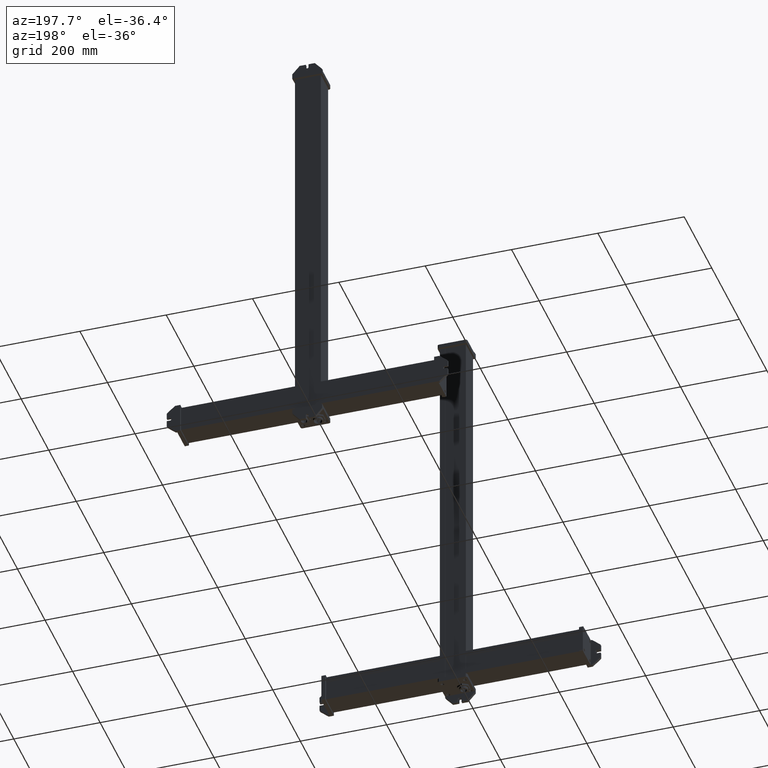
[diagram: clean part render]
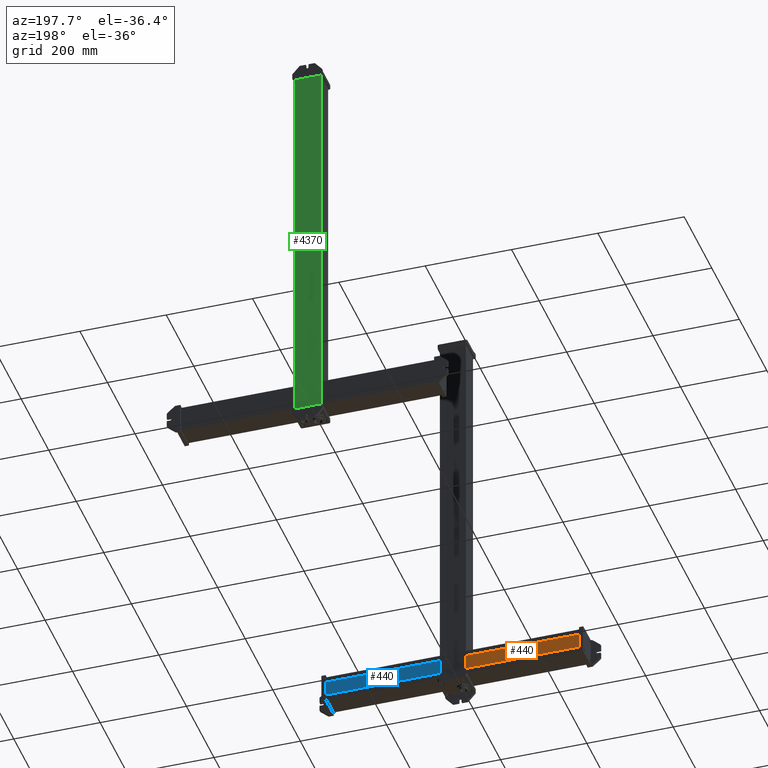
[diagram: same view with three faces highlighted in distinct colors, each labeled with its STEP entity id]
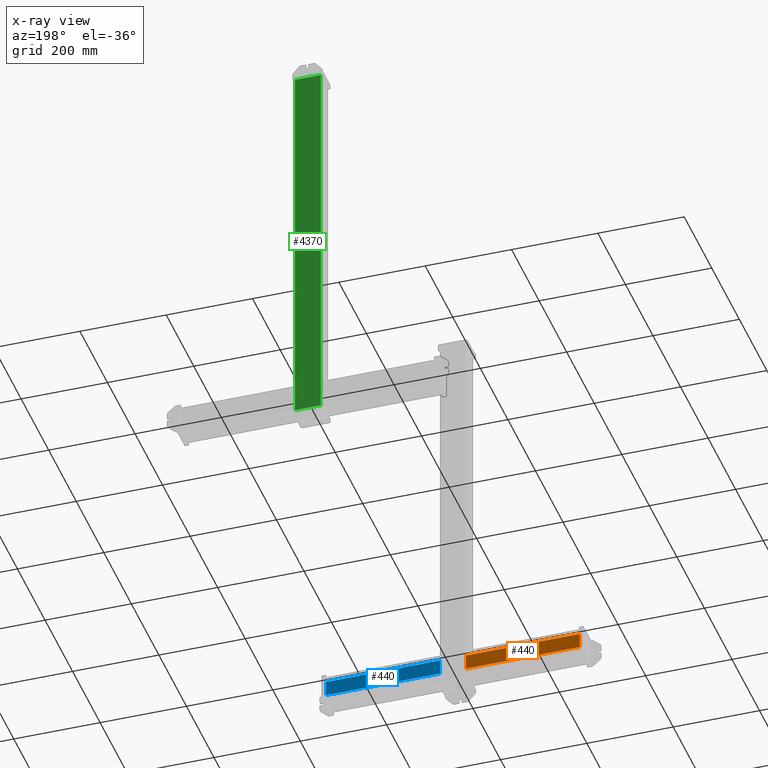
[diagram: x-ray of the same camera — body ghosted, the three highlighted faces saturated]
A machine part, auxiliary view with three faces highlighted in distinct colors.
The next image is the same camera in x-ray (body ghosted, the three faces saturated) — at least one of them is partly hidden behind the body in this view.
Their STEP definitions:

[orange] entity #440 — the highlighted planar face has unit normal (-0, 1, -0).
#357=CARTESIAN_POINT('Vertex',(12.,51.,0.)) ;
#360=CARTESIAN_POINT('Line Origine',(30.,51.,0.)) ;
#364=CARTESIAN_POINT('Vertex',(48.,51.,0.)) ;
#397=CARTESIAN_POINT('Vertex',(12.,51.,264.)) ;
#400=CARTESIAN_POINT('Line Origine',(12.,51.,132.)) ;
#417=CARTESIAN_POINT('Axis2P3D Location',(48.,51.,0.)) ;
#422=CARTESIAN_POINT('Line Origine',(48.,51.,132.)) ;
#426=CARTESIAN_POINT('Vertex',(48.,51.,264.)) ;
#429=CARTESIAN_POINT('Line Origine',(30.,51.,264.)) ;
#361=DIRECTION('Vector Direction',(-1.,0.,0.)) ;
#401=DIRECTION('Vector Direction',(0.,0.,1.)) ;
#418=DIRECTION('Axis2P3D Direction',(0.,1.,-0.)) ;
#419=DIRECTION('Axis2P3D XDirection',(-1.,0.,0.)) ;
#423=DIRECTION('Vector Direction',(0.,0.,1.)) ;
#430=DIRECTION('Vector Direction',(-1.,0.,0.)) ;
#420=AXIS2_PLACEMENT_3D('Plane Axis2P3D',#417,#418,#419) ;
#435=ORIENTED_EDGE('',*,*,#428,.F.) ;
#436=ORIENTED_EDGE('',*,*,#366,.F.) ;
#437=ORIENTED_EDGE('',*,*,#404,.T.) ;
#438=ORIENTED_EDGE('',*,*,#433,.F.) ;
#362=VECTOR('Line Direction',#361,1.) ;
#402=VECTOR('Line Direction',#401,1.) ;
#424=VECTOR('Line Direction',#423,1.) ;
#431=VECTOR('Line Direction',#430,1.) ;
#440=ADVANCED_FACE('Body.2',(#439),#421,.T.) ;
#366=EDGE_CURVE('',#358,#365,#363,.F.) ;
#404=EDGE_CURVE('',#358,#398,#403,.T.) ;
#428=EDGE_CURVE('',#365,#427,#425,.T.) ;
#433=EDGE_CURVE('',#427,#398,#432,.T.) ;
#434=EDGE_LOOP('',(#435,#436,#437,#438)) ;
#439=FACE_OUTER_BOUND('',#434,.T.) ;
#363=LINE('Line',#360,#362) ;
#403=LINE('Line',#400,#402) ;
#425=LINE('Line',#422,#424) ;
#432=LINE('Line',#429,#431) ;
#421=PLANE('Plane',#420) ;
#358=VERTEX_POINT('',#357) ;
#365=VERTEX_POINT('',#364) ;
#398=VERTEX_POINT('',#397) ;
#427=VERTEX_POINT('',#426) ;

[blue] entity #440 — the highlighted planar face has unit normal (-0, 1, -0).
#357=CARTESIAN_POINT('Vertex',(12.,51.,0.)) ;
#360=CARTESIAN_POINT('Line Origine',(30.,51.,0.)) ;
#364=CARTESIAN_POINT('Vertex',(48.,51.,0.)) ;
#397=CARTESIAN_POINT('Vertex',(12.,51.,264.)) ;
#400=CARTESIAN_POINT('Line Origine',(12.,51.,132.)) ;
#417=CARTESIAN_POINT('Axis2P3D Location',(48.,51.,0.)) ;
#422=CARTESIAN_POINT('Line Origine',(48.,51.,132.)) ;
#426=CARTESIAN_POINT('Vertex',(48.,51.,264.)) ;
#429=CARTESIAN_POINT('Line Origine',(30.,51.,264.)) ;
#361=DIRECTION('Vector Direction',(-1.,0.,0.)) ;
#401=DIRECTION('Vector Direction',(0.,0.,1.)) ;
#418=DIRECTION('Axis2P3D Direction',(0.,1.,-0.)) ;
#419=DIRECTION('Axis2P3D XDirection',(-1.,0.,0.)) ;
#423=DIRECTION('Vector Direction',(0.,0.,1.)) ;
#430=DIRECTION('Vector Direction',(-1.,0.,0.)) ;
#420=AXIS2_PLACEMENT_3D('Plane Axis2P3D',#417,#418,#419) ;
#435=ORIENTED_EDGE('',*,*,#428,.F.) ;
#436=ORIENTED_EDGE('',*,*,#366,.F.) ;
#437=ORIENTED_EDGE('',*,*,#404,.T.) ;
#438=ORIENTED_EDGE('',*,*,#433,.F.) ;
#362=VECTOR('Line Direction',#361,1.) ;
#402=VECTOR('Line Direction',#401,1.) ;
#424=VECTOR('Line Direction',#423,1.) ;
#431=VECTOR('Line Direction',#430,1.) ;
#440=ADVANCED_FACE('Body.2',(#439),#421,.T.) ;
#366=EDGE_CURVE('',#358,#365,#363,.F.) ;
#404=EDGE_CURVE('',#358,#398,#403,.T.) ;
#428=EDGE_CURVE('',#365,#427,#425,.T.) ;
#433=EDGE_CURVE('',#427,#398,#432,.T.) ;
#434=EDGE_LOOP('',(#435,#436,#437,#438)) ;
#439=FACE_OUTER_BOUND('',#434,.T.) ;
#363=LINE('Line',#360,#362) ;
#403=LINE('Line',#400,#402) ;
#425=LINE('Line',#422,#424) ;
#432=LINE('Line',#429,#431) ;
#421=PLANE('Plane',#420) ;
#358=VERTEX_POINT('',#357) ;
#365=VERTEX_POINT('',#364) ;
#398=VERTEX_POINT('',#397) ;
#427=VERTEX_POINT('',#426) ;

[green] entity #4370 — the highlighted planar face has unit normal (0, 1, 0).
#4331=CARTESIAN_POINT('Axis2P3D Location',(0.,0.,0.)) ;
#4336=CARTESIAN_POINT('Line Origine',(0.,0.,453.)) ;
#4340=CARTESIAN_POINT('Vertex',(0.,0.,0.)) ;
#4342=CARTESIAN_POINT('Vertex',(0.,0.,906.)) ;
#4345=CARTESIAN_POINT('Line Origine',(30.,0.,0.)) ;
#4349=CARTESIAN_POINT('Vertex',(60.,0.,0.)) ;
#4352=CARTESIAN_POINT('Line Origine',(60.,0.,453.)) ;
#4356=CARTESIAN_POINT('Vertex',(60.,0.,906.)) ;
#4359=CARTESIAN_POINT('Line Origine',(30.,0.,906.)) ;
#4332=DIRECTION('Axis2P3D Direction',(0.,-1.,0.)) ;
#4333=DIRECTION('Axis2P3D XDirection',(1.,0.,0.)) ;
#4337=DIRECTION('Vector Direction',(0.,0.,1.)) ;
#4346=DIRECTION('Vector Direction',(1.,0.,0.)) ;
#4353=DIRECTION('Vector Direction',(0.,0.,1.)) ;
#4360=DIRECTION('Vector Direction',(1.,0.,0.)) ;
#4334=AXIS2_PLACEMENT_3D('Plane Axis2P3D',#4331,#4332,#4333) ;
#4365=ORIENTED_EDGE('',*,*,#4344,.F.) ;
#4366=ORIENTED_EDGE('',*,*,#4351,.T.) ;
#4367=ORIENTED_EDGE('',*,*,#4358,.T.) ;
#4368=ORIENTED_EDGE('',*,*,#4363,.F.) ;
#4338=VECTOR('Line Direction',#4337,1.) ;
#4347=VECTOR('Line Direction',#4346,1.) ;
#4354=VECTOR('Line Direction',#4353,1.) ;
#4361=VECTOR('Line Direction',#4360,1.) ;
#4370=ADVANCED_FACE('PartBody',(#4369),#4335,.T.) ;
#4344=EDGE_CURVE('',#4341,#4343,#4339,.T.) ;
#4351=EDGE_CURVE('',#4341,#4350,#4348,.T.) ;
#4358=EDGE_CURVE('',#4350,#4357,#4355,.T.) ;
#4363=EDGE_CURVE('',#4343,#4357,#4362,.T.) ;
#4364=EDGE_LOOP('',(#4365,#4366,#4367,#4368)) ;
#4369=FACE_OUTER_BOUND('',#4364,.T.) ;
#4339=LINE('Line',#4336,#4338) ;
#4348=LINE('Line',#4345,#4347) ;
#4355=LINE('Line',#4352,#4354) ;
#4362=LINE('Line',#4359,#4361) ;
#4335=PLANE('Plane',#4334) ;
#4341=VERTEX_POINT('',#4340) ;
#4343=VERTEX_POINT('',#4342) ;
#4350=VERTEX_POINT('',#4349) ;
#4357=VERTEX_POINT('',#4356) ;